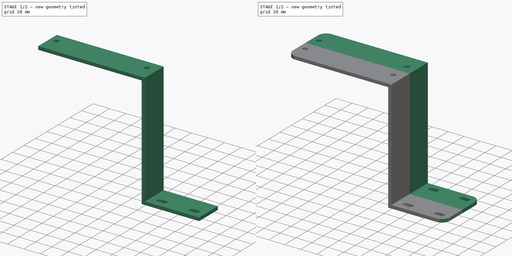
[diagram: build sequence overview — one tinted view per stage of 2, left to right]
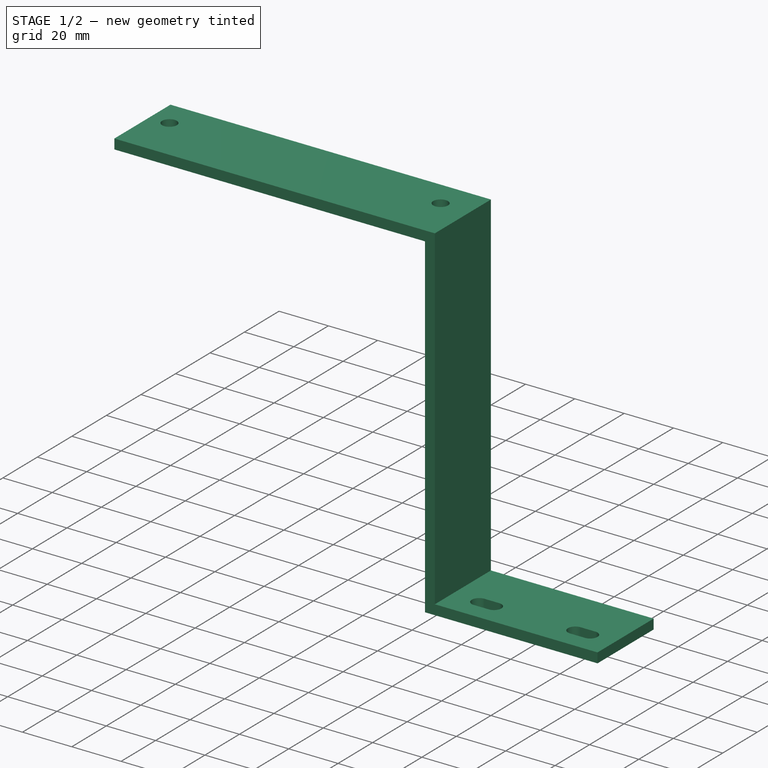
[diagram: stage 1 of 2 — iso view after this stage's code; geometry added in this stage tinted green]
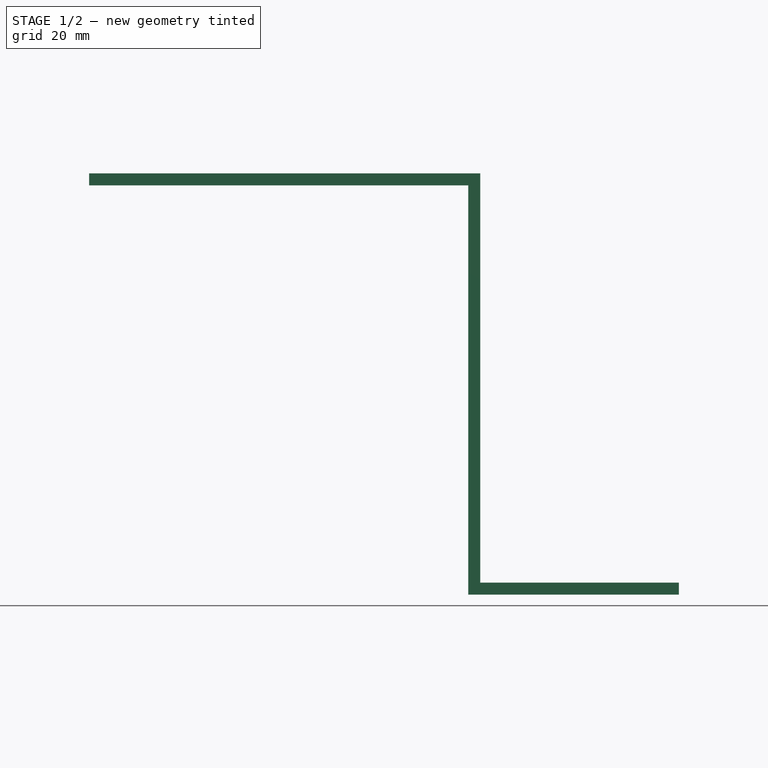
[diagram: stage 1 of 2 — front view after this stage's code; geometry added in this stage tinted green]
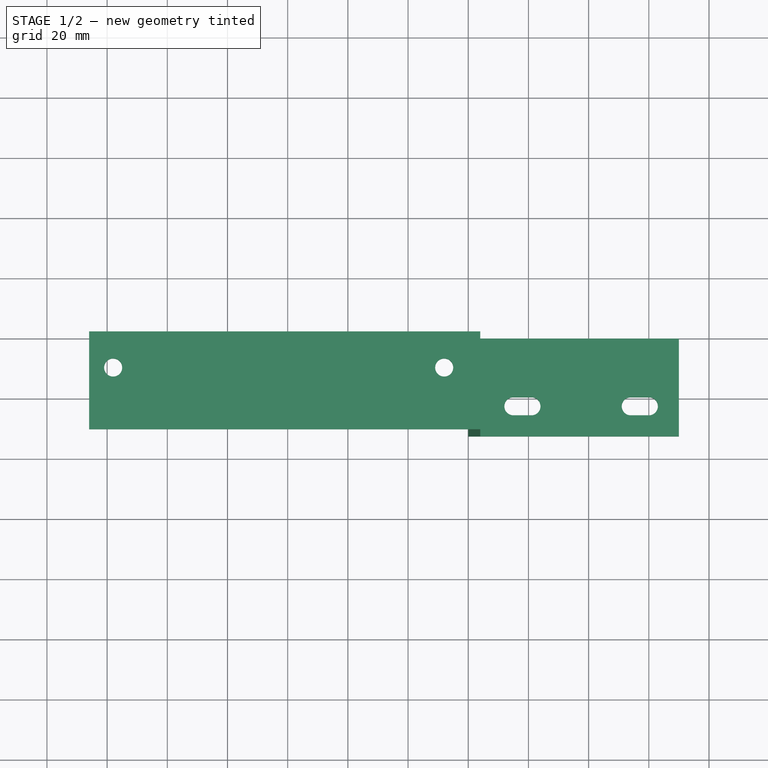
[diagram: stage 1 of 2 — top view after this stage's code; geometry added in this stage tinted green]
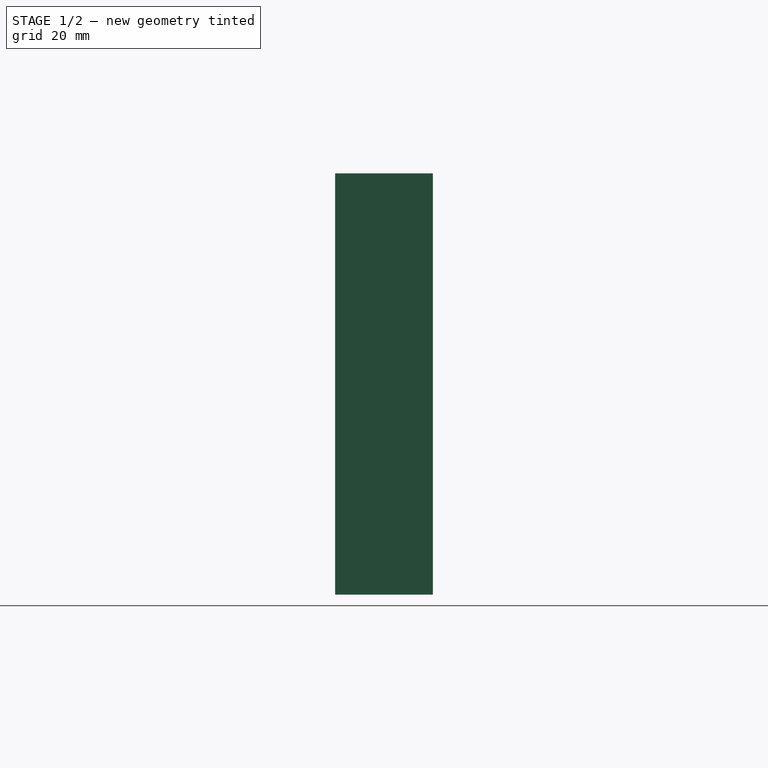
[diagram: stage 1 of 2 — right view after this stage's code; geometry added in this stage tinted green]
FCSTD DOCUMENT  (FreeCAD 0.19R24291 (Git))
Label: Скоба сброса готового стакана
License: All rights reserved
LicenseURL: http://en.wikipedia.org/wiki/All_rights_reserved
objects: Sketcher::SketchObject×2, PartDesign::Pad×1, PartDesign::Pocket×1, PartDesign::Fillet×1, PartDesign::Mirrored×1, PartDesign::Body×1
note: 10 computed .brp shape members not serialized (recipe doc carries the construction recipe); baked Part::Feature solids carry a one-line shape summary decoded from their .brp

FEATURE [Sketcher::SketchObject] Sketch
  FullyConstrained = false
  MapMode = 5
  Placement = pos=(0,0,0) rot=(1,0,0;1.5708rad)
  Support = -> [XZ_Plane]
  sketch-geometry (11):
    g0: LineSegment StartX=0 StartY=0 StartZ=0 EndX=0 EndY=136 EndZ=0
    g1: LineSegment StartX=0 StartY=136 StartZ=0 EndX=-126 EndY=136 EndZ=0
    g2: LineSegment StartX=-126 StartY=136 StartZ=0 EndX=-126 EndY=140 EndZ=0
    g3: LineSegment StartX=-126 StartY=140 StartZ=0 EndX=4 EndY=140 EndZ=0
    g4: LineSegment StartX=4 StartY=140 StartZ=0 EndX=4 EndY=4 EndZ=0
    g5: LineSegment StartX=4 StartY=4 StartZ=0 EndX=70 EndY=4 EndZ=0
    g6: LineSegment StartX=70 StartY=4 StartZ=0 EndX=70 EndY=0 EndZ=0
    g7: LineSegment StartX=70 StartY=0 StartZ=0 EndX=0 EndY=0 EndZ=0
    g8: LineSegment StartX=0 StartY=136 StartZ=0 EndX=4 EndY=136 EndZ=0
    g9: LineSegment StartX=-126 StartY=138.155 StartZ=0 EndX=-118 EndY=138.155 EndZ=0
    g10: LineSegment StartX=-8 StartY=137.228 StartZ=0 EndX=0 EndY=137.228 EndZ=0
  constraints (32):
    c: Coincident(g-1,g0)
    c: PointOnObject(g0,g-2)
    c: Coincident(g0,g1)
    c: Horizontal(g1)
    c: Coincident(g1,g2)
    c: Vertical(g2)
    c: Coincident(g2,g3)
    c: Horizontal(g3)
    c: Coincident(g3,g4)
    c: Vertical(g4)
    c: Coincident(g4,g5)
    c: Horizontal(g5)
    c: Coincident(g5,g6)
    c: PointOnObject(g6,g-1)
    c: Vertical(g6)
    c: Coincident(g6,g7)
    c: Coincident(g7,g0)
    c: Distance(g7) = 70
    c: Distance(g0,g3) = 140
    c: Distance(g2) = 4
    c: Coincident(g8,g0)
    c: PointOnObject(g8,g4)
    c: Horizontal(g8)
    c: Equal(g6,g8)
    c: Equal(g8,g2)
    c: PointOnObject(g9,g2)
    c: Horizontal(g9)
    c: PointOnObject(g10,g-2)
    c: Horizontal(g10)
    c: Equal(g10,g9)
    c: Distance(g10) = 8
    c: DistanceX(g9,g10) = 110
FEATURE [PartDesign::Pad] Pad
  Direction = (1,1,1)
  Length = 32.5
  Length2 = 100
  Placement = pos=(0,0,0) rot=(1,0,0;1.5708rad)
  Profile = -> Sketch
  Type = 0
FEATURE [Sketcher::SketchObject] Sketch001
  FullyConstrained = true
  MapMode = 5
  Support = -> [XY_Plane]
  sketch-geometry (10):
    g0: Circle CenterX=-8 CenterY=-12 CenterZ=0 NormalX=0 NormalY=0 NormalZ=1 AngleXU=0 Radius=3
    g1: Circle CenterX=-118 CenterY=-12 CenterZ=0 NormalX=0 NormalY=0 NormalZ=1 AngleXU=0 Radius=3
    g2: ArcOfCircle CenterX=15 CenterY=-22.5 CenterZ=0 NormalX=0 NormalY=0 NormalZ=1 AngleXU=0 Radius=3 StartAngle=1.5708 EndAngle=4.71239
    g3: ArcOfCircle CenterX=21 CenterY=-22.5 CenterZ=0 NormalX=0 NormalY=0 NormalZ=1 AngleXU=0 Radius=3 StartAngle=4.71239 EndAngle=7.85398
    g4: LineSegment StartX=15 StartY=-25.5 StartZ=0 EndX=21 EndY=-25.5 EndZ=0
    g5: LineSegment StartX=15 StartY=-19.5 StartZ=0 EndX=21 EndY=-19.5 EndZ=0
    g6: ArcOfCircle CenterX=54 CenterY=-22.5 CenterZ=0 NormalX=0 NormalY=0 NormalZ=1 AngleXU=0 Radius=3 StartAngle=1.5708 EndAngle=4.71239
    g7: ArcOfCircle CenterX=60 CenterY=-22.5 CenterZ=0 NormalX=0 NormalY=0 NormalZ=1 AngleXU=0 Radius=3 StartAngle=4.71239 EndAngle=7.85398
    g8: LineSegment StartX=54 StartY=-25.5 StartZ=0 EndX=60 EndY=-25.5 EndZ=0
    g9: LineSegment StartX=54 StartY=-19.5 StartZ=0 EndX=60 EndY=-19.5 EndZ=0
  constraints (26):
    c: Horizontal(g0,g1)
    c: Distance(g0,g-1) = 12
    c: Distance(g0,g-2) = 8
    c: Distance(g0,g1) = 110
    c: Tangent(g2,g5) = 1.5708
    c: Tangent(g2,g4) = -1.5708
    c: Tangent(g4,g3) = -1.5708
    c: Tangent(g5,g3) = 1.5708
    c: Horizontal(g4)
    c: Equal(g2,g3)
    c: Diameter(g3) = 6
    c: Distance(g3,g2) = 6
    c: Tangent(g6,g9) = 1.5708
    c: Tangent(g6,g8) = -1.5708
    c: Tangent(g8,g7) = -1.5708
    c: Tangent(g9,g7) = 1.5708
    c: Horizontal(g8)
    c: Equal(g6,g7)
    c: Equal(g6,g3)
    c: Equal(g8,g4)
    c: Horizontal(g6,g3)
    c: Distance(g2,g-2) = 15
    c: Distance(g6,g3) = 33
    c: Distance(g7,g-1) = 22.5
    c: Equal(g0,g1)
    c: Diameter(g0) = 6
FEATURE [PartDesign::Pocket] Pocket
  BaseFeature = -> Pad
  Length = 5
  Length2 = 100
  Placement = pos=(0,0,0) rot=(1,0,0;1.5708rad)
  Profile = -> Sketch001
  Reversed = true
  Type = 1
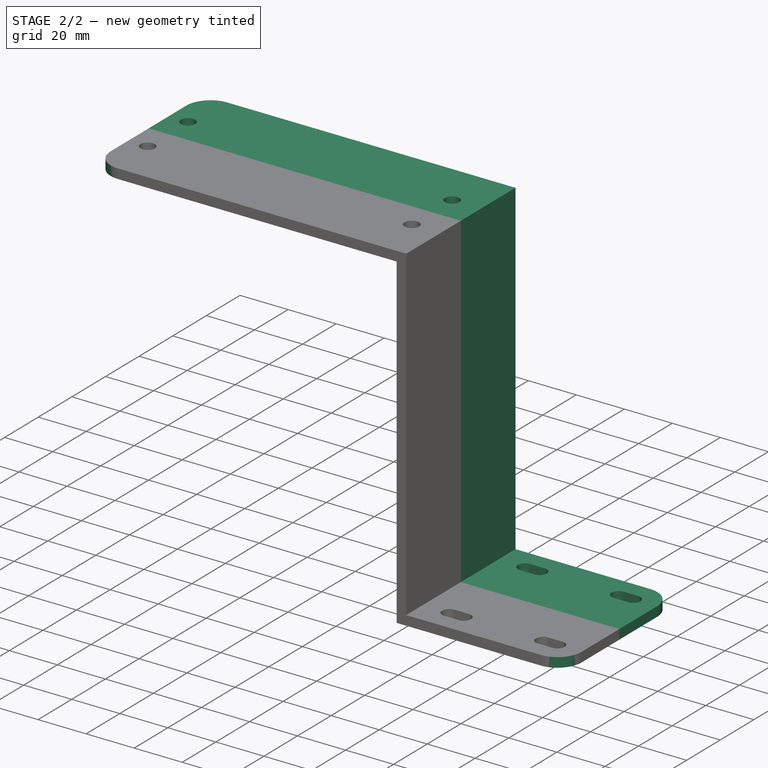
[diagram: stage 2 of 2 — iso view after this stage's code; geometry added in this stage tinted green]
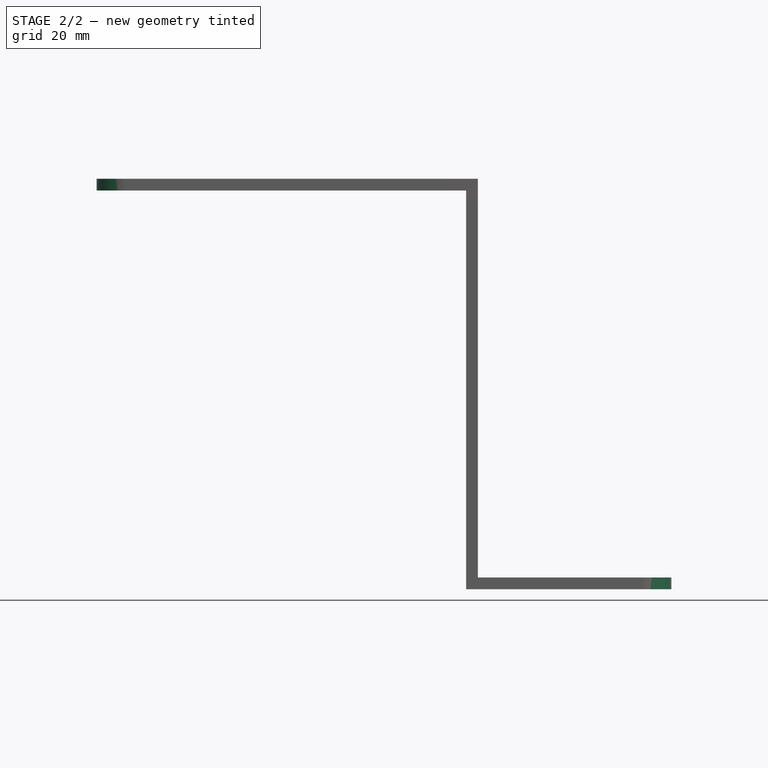
[diagram: stage 2 of 2 — front view after this stage's code; geometry added in this stage tinted green]
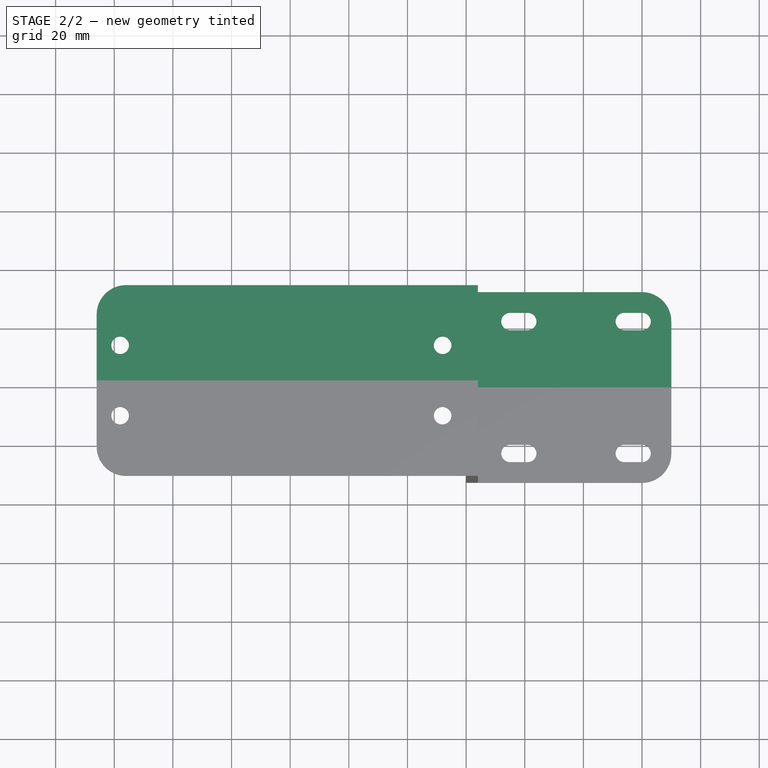
[diagram: stage 2 of 2 — top view after this stage's code; geometry added in this stage tinted green]
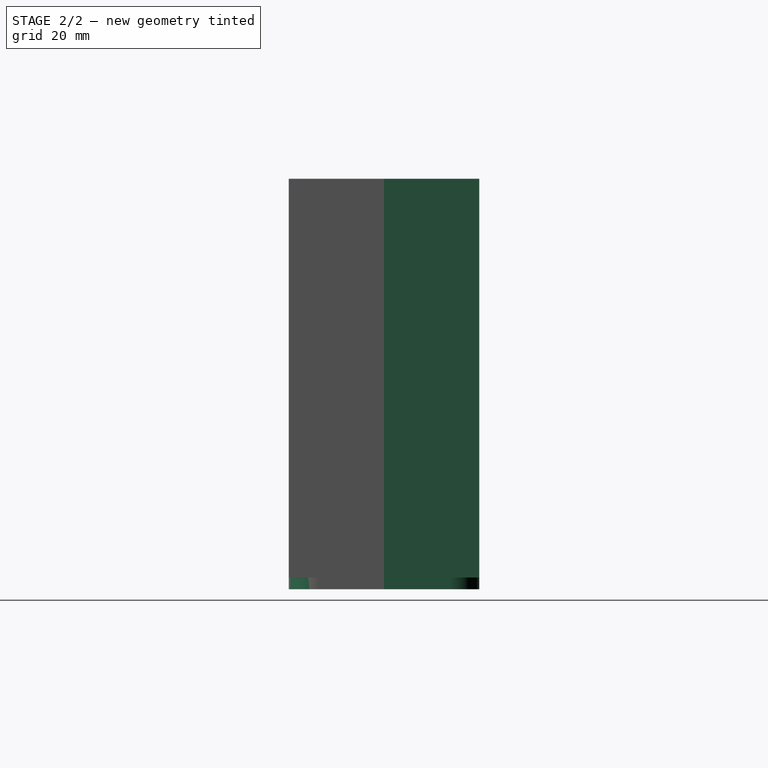
[diagram: stage 2 of 2 — right view after this stage's code; geometry added in this stage tinted green]
FEATURE [PartDesign::Fillet] Fillet
  Base = -> Pocket [Edge26,Edge30]
  BaseFeature = -> Pocket
  Placement = pos=(0,0,0) rot=(1,0,0;1.5708rad)
  Radius = 10
  SupportTransform = false
FEATURE [PartDesign::Mirrored] Mirrored
  BaseFeature = -> Fillet
  MirrorPlane = -> XZ_Plane
  Originals = -> [Pad,Pocket,Fillet]
  Placement = pos=(0,0,0) rot=(1,0,0;1.5708rad)
FEATURE [PartDesign::Body] Body
  Group = -> [Sketch,Pad,Sketch001,Pocket,Fillet,Mirrored]
  Origin = -> Origin
  Tip = -> Mirrored
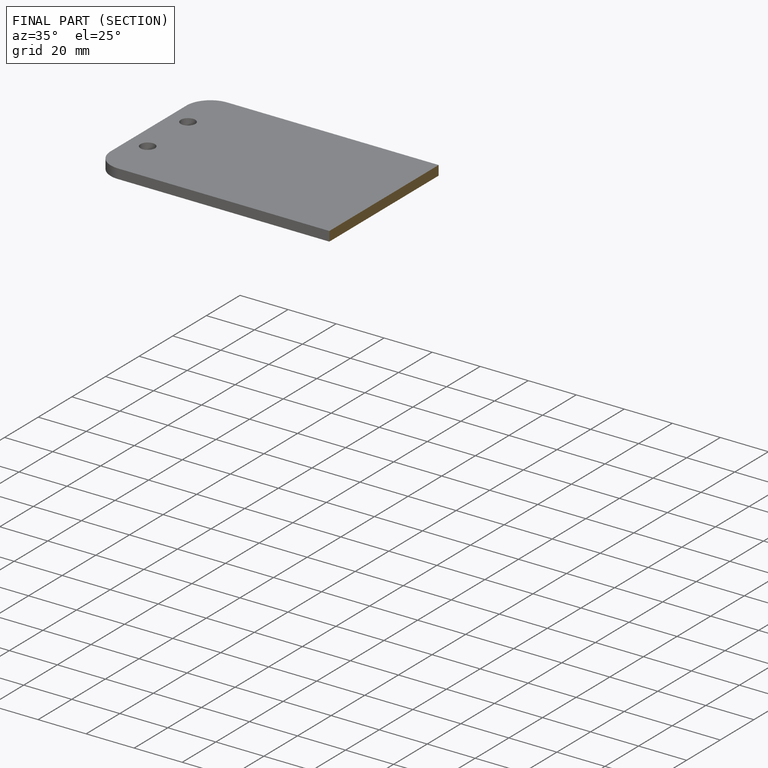
[diagram: finished part — half-section view (interior)]
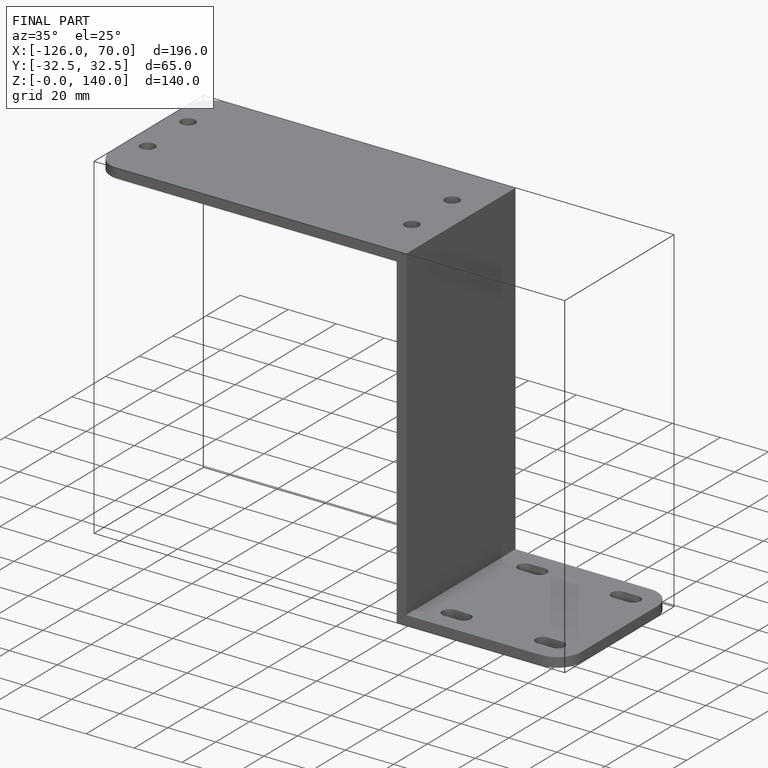
[diagram: finished part — iso view with bounding-box wireframe]
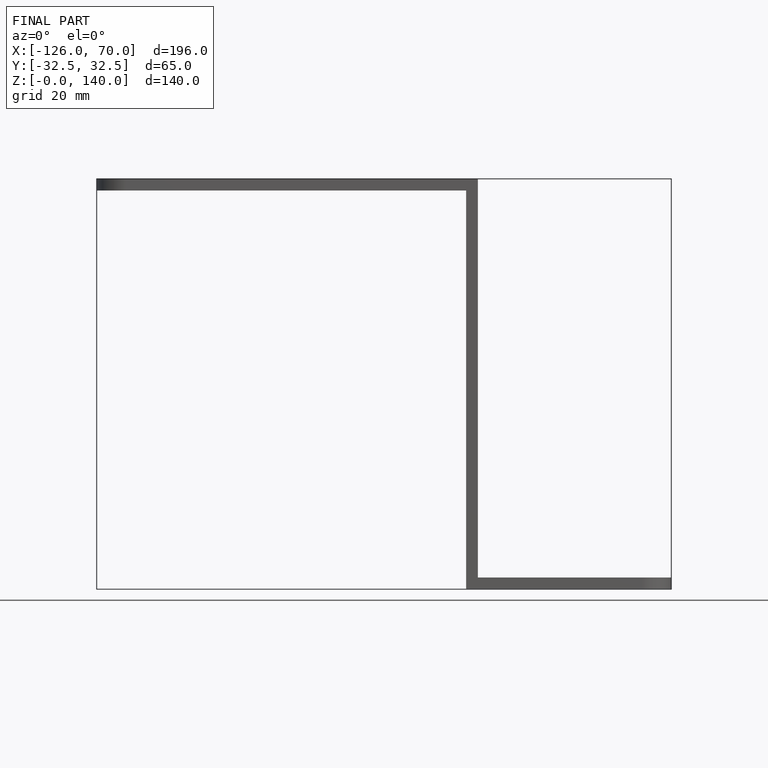
[diagram: finished part — front view with bounding-box wireframe]
